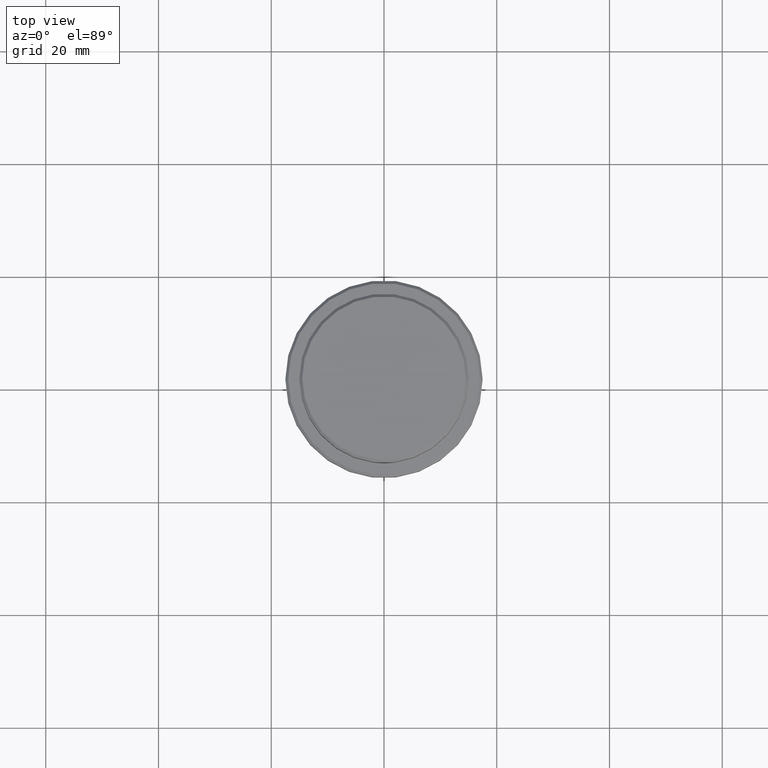
[diagram: clean part render]
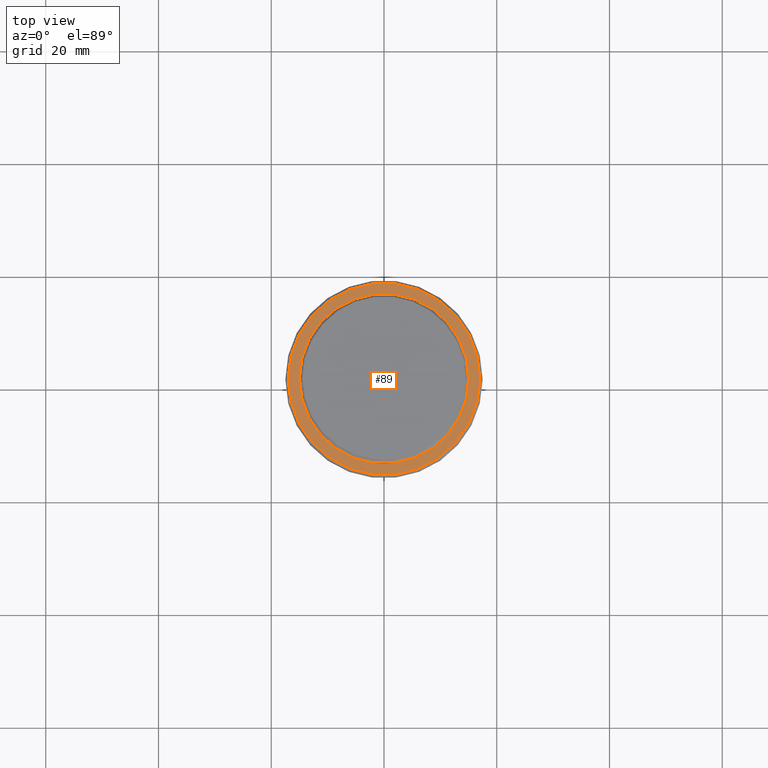
[diagram: same view with one face highlighted and labeled with its STEP entity id]
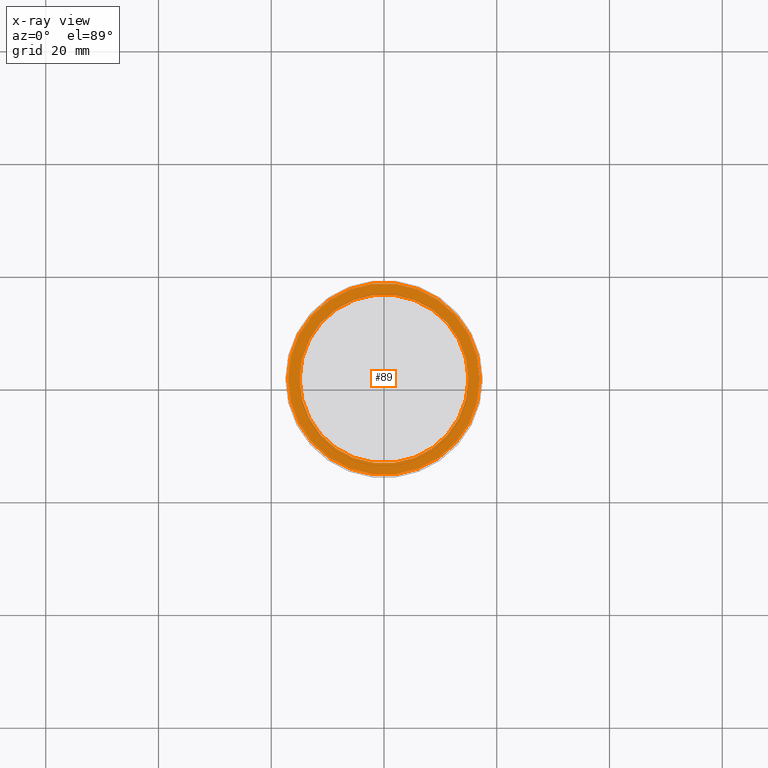
[diagram: x-ray of the same camera — body ghosted, the highlighted face saturated]
A machine part, top view. The second image highlights one B-rep face of the part: STEP entity #89.
The next image is the same camera in x-ray: the body ghosted, the highlighted face saturated — about 0% of this face is hidden behind the body in this view.
In plain terms, the highlighted planar face has unit normal (0, -0, 1).
Its self-contained STEP definition (entity closure, byte-faithful):
#40 = CIRCLE ( 'NONE', #723, 17.00000000000000000 ) ;
#54 = DIRECTION ( 'NONE',  ( 0.000000000000000000, 0.000000000000000000, -1.000000000000000000 ) ) ;
#68 = CARTESIAN_POINT ( 'NONE',  ( 0.000000000000000000, 14.49999999999999467, -9.000000000000000000 ) ) ;
#89 = ADVANCED_FACE ( 'NONE', ( #381, #281 ), #263, .T. ) ;
#141 = VERTEX_POINT ( 'NONE', #833 ) ;
#155 = CARTESIAN_POINT ( 'NONE',  ( 0.000000000000000000, 0.000000000000000000, -9.000000000000000000 ) ) ;
#172 = EDGE_CURVE ( 'NONE', #1325, #896, #300, .T. ) ;
#236 = DIRECTION ( 'NONE',  ( 1.000000000000000000, 0.000000000000000000, 0.000000000000000000 ) ) ;
#250 = CARTESIAN_POINT ( 'NONE',  ( -14.99999999999999289, 1.836970198721028800E-15, -9.000000000000000000 ) ) ;
#263 = PLANE ( 'NONE',  #1358 ) ;
#281 = FACE_BOUND ( 'NONE', #1078, .T. ) ;
#290 = ORIENTED_EDGE ( 'NONE', *, *, #1241, .T. ) ;
#300 = CIRCLE ( 'NONE', #812, 14.99999999999999289 ) ;
#305 = CARTESIAN_POINT ( 'NONE',  ( 0.000000000000000000, 0.000000000000000000, -9.000000000000000000 ) ) ;
#343 = CARTESIAN_POINT ( 'NONE',  ( 14.99999999999999289, 0.000000000000000000, -9.000000000000000000 ) ) ;
#381 = FACE_OUTER_BOUND ( 'NONE', #408, .T. ) ;
#408 = EDGE_LOOP ( 'NONE', ( #455, #290 ) ) ;
#447 = CARTESIAN_POINT ( 'NONE',  ( 0.000000000000000000, 0.000000000000000000, -9.000000000000000000 ) ) ;
#455 = ORIENTED_EDGE ( 'NONE', *, *, #670, .T. ) ;
#474 = CIRCLE ( 'NONE', #682, 14.99999999999999289 ) ;
#484 = DIRECTION ( 'NONE',  ( 1.000000000000000000, 0.000000000000000000, 0.000000000000000000 ) ) ;
#534 = CARTESIAN_POINT ( 'NONE',  ( 17.00000000000000000, 2.112515728529184067E-15, -9.000000000000000000 ) ) ;
#576 = DIRECTION ( 'NONE',  ( 1.000000000000000000, 0.000000000000000000, 0.000000000000000000 ) ) ;
#670 = EDGE_CURVE ( 'NONE', #141, #1163, #40, .T. ) ;
#682 = AXIS2_PLACEMENT_3D ( 'NONE', #779, #1137, #236 ) ;
#711 = DIRECTION ( 'NONE',  ( 1.000000000000000000, 0.000000000000000000, 0.000000000000000000 ) ) ;
#712 = ORIENTED_EDGE ( 'NONE', *, *, #172, .T. ) ;
#723 = AXIS2_PLACEMENT_3D ( 'NONE', #305, #1081, #847 ) ;
#779 = CARTESIAN_POINT ( 'NONE',  ( 0.000000000000000000, 0.000000000000000000, -9.000000000000000000 ) ) ;
#812 = AXIS2_PLACEMENT_3D ( 'NONE', #155, #54, #484 ) ;
#833 = CARTESIAN_POINT ( 'NONE',  ( -17.00000000000000000, 0.000000000000000000, -9.000000000000000000 ) ) ;
#847 = DIRECTION ( 'NONE',  ( 1.000000000000000000, 0.000000000000000000, 0.000000000000000000 ) ) ;
#896 = VERTEX_POINT ( 'NONE', #343 ) ;
#916 = DIRECTION ( 'NONE',  ( 0.000000000000000000, -0.000000000000000000, 1.000000000000000000 ) ) ;
#1078 = EDGE_LOOP ( 'NONE', ( #1224, #712 ) ) ;
#1081 = DIRECTION ( 'NONE',  ( -0.000000000000000000, -0.000000000000000000, 1.000000000000000000 ) ) ;
#1112 = AXIS2_PLACEMENT_3D ( 'NONE', #447, #1219, #576 ) ;
#1137 = DIRECTION ( 'NONE',  ( 0.000000000000000000, 0.000000000000000000, -1.000000000000000000 ) ) ;
#1163 = VERTEX_POINT ( 'NONE', #534 ) ;
#1206 = EDGE_CURVE ( 'NONE', #896, #1325, #474, .T. ) ;
#1219 = DIRECTION ( 'NONE',  ( -0.000000000000000000, -0.000000000000000000, 1.000000000000000000 ) ) ;
#1224 = ORIENTED_EDGE ( 'NONE', *, *, #1206, .T. ) ;
#1225 = CIRCLE ( 'NONE', #1112, 17.00000000000000000 ) ;
#1241 = EDGE_CURVE ( 'NONE', #1163, #141, #1225, .T. ) ;
#1325 = VERTEX_POINT ( 'NONE', #250 ) ;
#1358 = AXIS2_PLACEMENT_3D ( 'NONE', #68, #916, #711 ) ;